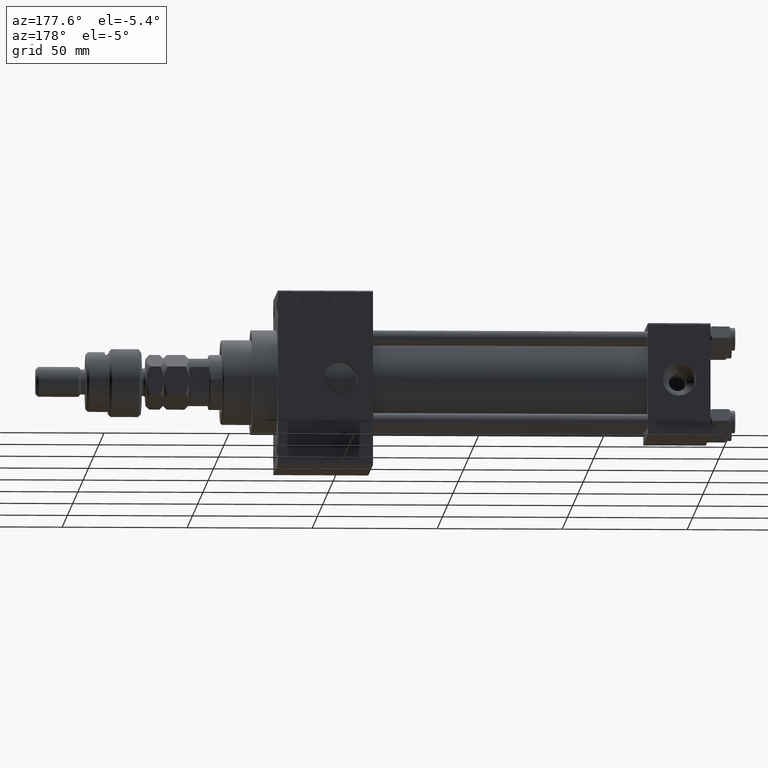
[diagram: clean part render]
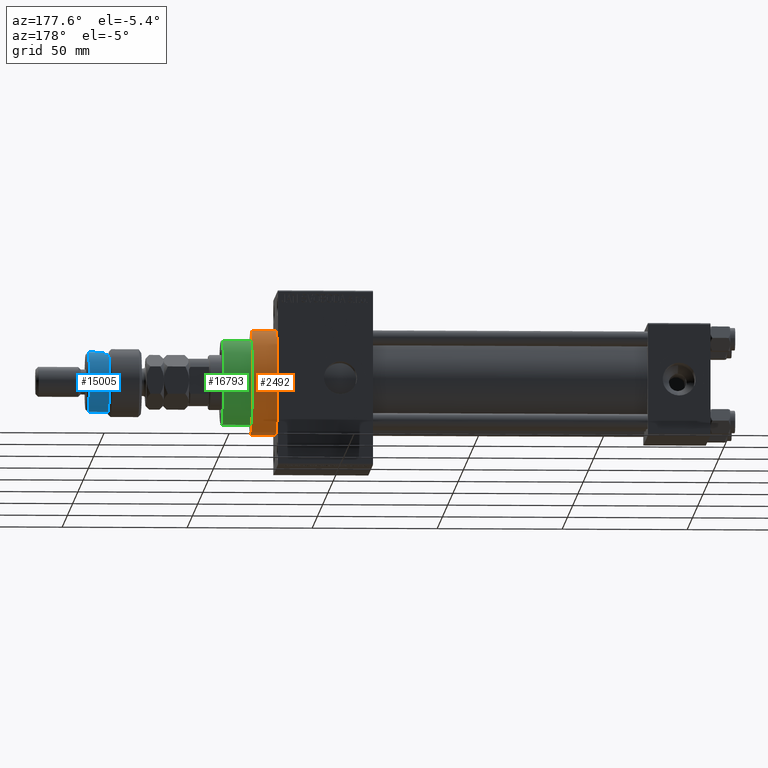
[diagram: same view with three faces highlighted in distinct colors, each labeled with its STEP entity id]
A machine part, auxiliary view with three faces highlighted in distinct colors.
Their STEP definitions:

[orange] entity #2492 — the highlighted cylindrical surface (partial cylindrical patch) has radius 21 mm, axis along (-1, -0, -0).
#2492 = ADVANCED_FACE ( 'NONE', ( #34405 ), #26004, .T. ) ;
#2597 = CARTESIAN_POINT ( 'NONE',  ( 173.0000000000000284, 0.000000000000000000, 0.000000000000000000 ) ) ;
#4593 = VERTEX_POINT ( 'NONE', #25946 ) ;
#4795 = DIRECTION ( 'NONE',  ( 1.000000000000000000, 0.000000000000000000, 0.000000000000000000 ) ) ;
#5853 = CARTESIAN_POINT ( 'NONE',  ( 173.0000000000000284, 0.000000000000000000, 21.00000000000000000 ) ) ;
#6062 = DIRECTION ( 'NONE',  ( -1.000000000000000000, -0.000000000000000000, -0.000000000000000000 ) ) ;
#6863 = EDGE_LOOP ( 'NONE', ( #31328, #44008, #29442, #35815 ) ) ;
#7508 = CIRCLE ( 'NONE', #42706, 21.00000000000000000 ) ;
#8141 = EDGE_CURVE ( 'NONE', #8202, #4593, #28521, .T. ) ;
#8202 = VERTEX_POINT ( 'NONE', #28447 ) ;
#12724 = CARTESIAN_POINT ( 'NONE',  ( 183.0000000000000284, 2.571758278209441661E-15, -21.00000000000000000 ) ) ;
#12836 = VECTOR ( 'NONE', #44775, 1000.000000000000000 ) ;
#14840 = LINE ( 'NONE', #51592, #23774 ) ;
#16123 = CARTESIAN_POINT ( 'NONE',  ( 183.0000000000000284, 0.000000000000000000, 0.000000000000000000 ) ) ;
#18103 = DIRECTION ( 'NONE',  ( 1.000000000000000000, 0.000000000000000000, 0.000000000000000000 ) ) ;
#18745 = EDGE_CURVE ( 'NONE', #25567, #31981, #7508, .T. ) ;
#23774 = VECTOR ( 'NONE', #35041, 1000.000000000000000 ) ;
#25567 = VERTEX_POINT ( 'NONE', #41471 ) ;
#25946 = CARTESIAN_POINT ( 'NONE',  ( 183.0000000000000284, 0.000000000000000000, 21.00000000000000000 ) ) ;
#26004 = CYLINDRICAL_SURFACE ( 'NONE', #42614, 21.00000000000000000 ) ;
#28447 = CARTESIAN_POINT ( 'NONE',  ( 183.0000000000000284, 2.571758278209441661E-15, -21.00000000000000000 ) ) ;
#28521 = CIRCLE ( 'NONE', #33574, 21.00000000000000000 ) ;
#29442 = ORIENTED_EDGE ( 'NONE', *, *, #18745, .T. ) ;
#29526 = LINE ( 'NONE', #12724, #12836 ) ;
#30717 = EDGE_CURVE ( 'NONE', #4593, #31981, #14840, .T. ) ;
#31328 = ORIENTED_EDGE ( 'NONE', *, *, #8141, .F. ) ;
#31981 = VERTEX_POINT ( 'NONE', #5853 ) ;
#32405 = DIRECTION ( 'NONE',  ( 0.000000000000000000, 0.000000000000000000, -1.000000000000000000 ) ) ;
#33574 = AXIS2_PLACEMENT_3D ( 'NONE', #16123, #4795, #32405 ) ;
#34368 = DIRECTION ( 'NONE',  ( 0.000000000000000000, 0.000000000000000000, -1.000000000000000000 ) ) ;
#34405 = FACE_OUTER_BOUND ( 'NONE', #6863, .T. ) ;
#35041 = DIRECTION ( 'NONE',  ( -1.000000000000000000, -0.000000000000000000, -0.000000000000000000 ) ) ;
#35815 = ORIENTED_EDGE ( 'NONE', *, *, #30717, .F. ) ;
#41471 = CARTESIAN_POINT ( 'NONE',  ( 173.0000000000000284, 2.571758278209441661E-15, -21.00000000000000000 ) ) ;
#42035 = CARTESIAN_POINT ( 'NONE',  ( 183.0000000000000284, 0.000000000000000000, 0.000000000000000000 ) ) ;
#42614 = AXIS2_PLACEMENT_3D ( 'NONE', #42035, #6062, #50690 ) ;
#42706 = AXIS2_PLACEMENT_3D ( 'NONE', #2597, #18103, #34368 ) ;
#44008 = ORIENTED_EDGE ( 'NONE', *, *, #50076, .T. ) ;
#44775 = DIRECTION ( 'NONE',  ( -1.000000000000000000, -0.000000000000000000, -0.000000000000000000 ) ) ;
#50076 = EDGE_CURVE ( 'NONE', #8202, #25567, #29526, .T. ) ;
#50690 = DIRECTION ( 'NONE',  ( 0.000000000000000000, 0.000000000000000000, 1.000000000000000000 ) ) ;
#51592 = CARTESIAN_POINT ( 'NONE',  ( 183.0000000000000284, 0.000000000000000000, 21.00000000000000000 ) ) ;

[blue] entity #15005 — the highlighted cylindrical surface (edge-blend (fillet) strip) has radius 12 mm, axis along (-1, -0, 0).
#269 = CARTESIAN_POINT ( 'NONE',  ( 12.00000000000000178, 1.469576158976824144E-15, 13.00000000000000000 ) ) ;
#608 = CARTESIAN_POINT ( 'NONE',  ( -12.00000000000000178, 0.000000000000000000, 22.00000000000000000 ) ) ;
#1608 = VECTOR ( 'NONE', #32931, 1000.000000000000000 ) ;
#3301 = CIRCLE ( 'NONE', #17552, 12.00000000000000178 ) ;
#3448 = CYLINDRICAL_SURFACE ( 'NONE', #44373, 12.00000000000000178 ) ;
#4500 = CARTESIAN_POINT ( 'NONE',  ( -12.00000000000000178, 0.000000000000000000, 20.99999999999998224 ) ) ;
#5698 = VERTEX_POINT ( 'NONE', #35393 ) ;
#6130 = VERTEX_POINT ( 'NONE', #269 ) ;
#7757 = ORIENTED_EDGE ( 'NONE', *, *, #13118, .F. ) ;
#8019 = DIRECTION ( 'NONE',  ( -1.000000000000000000, 0.000000000000000000, 0.000000000000000000 ) ) ;
#8875 = DIRECTION ( 'NONE',  ( 0.000000000000000000, 0.000000000000000000, -1.000000000000000000 ) ) ;
#8925 = VERTEX_POINT ( 'NONE', #49057 ) ;
#9004 = LINE ( 'NONE', #608, #1608 ) ;
#11063 = CARTESIAN_POINT ( 'NONE',  ( 12.00000000000000178, 1.469576158976824144E-15, 22.00000000000000000 ) ) ;
#12811 = CARTESIAN_POINT ( 'NONE',  ( 0.000000000000000000, 0.000000000000000000, 20.99999999999998224 ) ) ;
#13118 = EDGE_CURVE ( 'NONE', #20595, #8925, #38667, .T. ) ;
#14325 = ORIENTED_EDGE ( 'NONE', *, *, #19033, .T. ) ;
#15005 = ADVANCED_FACE ( 'NONE', ( #38640 ), #3448, .T. ) ;
#15026 = LINE ( 'NONE', #11063, #47303 ) ;
#15095 = EDGE_LOOP ( 'NONE', ( #14325, #17089, #15589, #36396, #7757, #17616 ) ) ;
#15427 = CARTESIAN_POINT ( 'NONE',  ( 12.00000000000000178, 1.469576158976824144E-15, 20.99999999999998224 ) ) ;
#15553 = EDGE_CURVE ( 'NONE', #33711, #20595, #9004, .T. ) ;
#15589 = ORIENTED_EDGE ( 'NONE', *, *, #44296, .T. ) ;
#17089 = ORIENTED_EDGE ( 'NONE', *, *, #32768, .T. ) ;
#17552 = AXIS2_PLACEMENT_3D ( 'NONE', #12811, #8875, #40897 ) ;
#17616 = ORIENTED_EDGE ( 'NONE', *, *, #15553, .F. ) ;
#19033 = EDGE_CURVE ( 'NONE', #33711, #45809, #3301, .T. ) ;
#19308 = CARTESIAN_POINT ( 'NONE',  ( 0.000000000000000000, 0.000000000000000000, 14.50000000000000000 ) ) ;
#19472 = DIRECTION ( 'NONE',  ( -0.000000000000000000, -0.000000000000000000, -1.000000000000000000 ) ) ;
#20595 = VERTEX_POINT ( 'NONE', #29505 ) ;
#21988 = CIRCLE ( 'NONE', #47984, 12.00000000000000178 ) ;
#23145 = DIRECTION ( 'NONE',  ( -1.000000000000000000, 0.000000000000000000, 0.000000000000000000 ) ) ;
#23555 = LINE ( 'NONE', #39577, #36621 ) ;
#27090 = CARTESIAN_POINT ( 'NONE',  ( 0.000000000000000000, 0.000000000000000000, 22.00000000000000000 ) ) ;
#27349 = DIRECTION ( 'NONE',  ( -0.000000000000000000, -0.000000000000000000, -1.000000000000000000 ) ) ;
#28892 = CARTESIAN_POINT ( 'NONE',  ( 0.000000000000000000, 0.000000000000000000, 13.00000000000000000 ) ) ;
#29505 = CARTESIAN_POINT ( 'NONE',  ( -12.00000000000000178, 0.000000000000000000, 14.50000000000000000 ) ) ;
#32768 = EDGE_CURVE ( 'NONE', #45809, #6130, #15026, .T. ) ;
#32931 = DIRECTION ( 'NONE',  ( -0.000000000000000000, -0.000000000000000000, -1.000000000000000000 ) ) ;
#33595 = DIRECTION ( 'NONE',  ( 1.000000000000000000, 0.000000000000000000, 0.000000000000000000 ) ) ;
#33711 = VERTEX_POINT ( 'NONE', #4500 ) ;
#35393 = CARTESIAN_POINT ( 'NONE',  ( -10.39230484541326760, 6.000000000000000000, 13.00000000000000000 ) ) ;
#36396 = ORIENTED_EDGE ( 'NONE', *, *, #37912, .T. ) ;
#36621 = VECTOR ( 'NONE', #44304, 1000.000000000000000 ) ;
#37912 = EDGE_CURVE ( 'NONE', #5698, #8925, #23555, .T. ) ;
#38640 = FACE_OUTER_BOUND ( 'NONE', #15095, .T. ) ;
#38667 = CIRCLE ( 'NONE', #45379, 12.00000000000000178 ) ;
#39577 = CARTESIAN_POINT ( 'NONE',  ( -10.39230484541326760, 6.000000000000000000, 22.00000000000000000 ) ) ;
#40897 = DIRECTION ( 'NONE',  ( 1.000000000000000000, 0.000000000000000000, 0.000000000000000000 ) ) ;
#43999 = DIRECTION ( 'NONE',  ( 0.000000000000000000, 0.000000000000000000, -1.000000000000000000 ) ) ;
#44296 = EDGE_CURVE ( 'NONE', #6130, #5698, #21988, .T. ) ;
#44304 = DIRECTION ( 'NONE',  ( 0.000000000000000000, 0.000000000000000000, 1.000000000000000000 ) ) ;
#44373 = AXIS2_PLACEMENT_3D ( 'NONE', #27090, #19472, #23145 ) ;
#44904 = DIRECTION ( 'NONE',  ( 0.000000000000000000, 0.000000000000000000, 1.000000000000000000 ) ) ;
#45379 = AXIS2_PLACEMENT_3D ( 'NONE', #19308, #43999, #8019 ) ;
#45809 = VERTEX_POINT ( 'NONE', #15427 ) ;
#47303 = VECTOR ( 'NONE', #27349, 1000.000000000000000 ) ;
#47984 = AXIS2_PLACEMENT_3D ( 'NONE', #28892, #44904, #33595 ) ;
#49057 = CARTESIAN_POINT ( 'NONE',  ( -10.39230484541326582, 5.999999999999998224, 14.50000000000000000 ) ) ;

[green] entity #16793 — the highlighted cylindrical surface (partial cylindrical patch) has radius 17 mm, axis along (-1, 0, 0).
#479 = CARTESIAN_POINT ( 'NONE',  ( 0.000000000000000000, 0.000000000000000000, 43.25999999999999801 ) ) ;
#2992 = ORIENTED_EDGE ( 'NONE', *, *, #45944, .T. ) ;
#5159 = AXIS2_PLACEMENT_3D ( 'NONE', #41373, #5407, #37435 ) ;
#5407 = DIRECTION ( 'NONE',  ( 0.000000000000000000, 0.000000000000000000, -1.000000000000000000 ) ) ;
#6999 = CARTESIAN_POINT ( 'NONE',  ( 17.00000000000000000, 2.081899558550500280E-15, 54.76000000000001222 ) ) ;
#7138 = CARTESIAN_POINT ( 'NONE',  ( 17.00000000000000000, 2.081899558550500280E-15, 43.25999999999999801 ) ) ;
#13557 = VECTOR ( 'NONE', #32514, 1000.000000000000000 ) ;
#13802 = CYLINDRICAL_SURFACE ( 'NONE', #25035, 17.00000000000000000 ) ;
#16181 = VECTOR ( 'NONE', #48602, 1000.000000000000000 ) ;
#16793 = ADVANCED_FACE ( 'NONE', ( #17743 ), #13802, .T. ) ;
#17061 = CIRCLE ( 'NONE', #38004, 17.00000000000000000 ) ;
#17743 = FACE_OUTER_BOUND ( 'NONE', #42885, .T. ) ;
#20903 = CARTESIAN_POINT ( 'NONE',  ( -17.00000000000000000, 0.000000000000000000, 54.76000000000001222 ) ) ;
#21016 = CARTESIAN_POINT ( 'NONE',  ( 17.00000000000000000, 2.081899558550500280E-15, 55.26000000000000512 ) ) ;
#21279 = LINE ( 'NONE', #21016, #16181 ) ;
#21840 = VERTEX_POINT ( 'NONE', #6999 ) ;
#22156 = LINE ( 'NONE', #37208, #13557 ) ;
#22283 = CARTESIAN_POINT ( 'NONE',  ( -17.00000000000000000, 0.000000000000000000, 43.25999999999999801 ) ) ;
#24584 = DIRECTION ( 'NONE',  ( -1.000000000000000000, 0.000000000000000000, 0.000000000000000000 ) ) ;
#25035 = AXIS2_PLACEMENT_3D ( 'NONE', #29831, #33004, #24584 ) ;
#29762 = EDGE_CURVE ( 'NONE', #21840, #32757, #21279, .T. ) ;
#29831 = CARTESIAN_POINT ( 'NONE',  ( 0.000000000000000000, 0.000000000000000000, 55.26000000000000512 ) ) ;
#30271 = EDGE_CURVE ( 'NONE', #39564, #32757, #17061, .T. ) ;
#31555 = ORIENTED_EDGE ( 'NONE', *, *, #29762, .F. ) ;
#32163 = ORIENTED_EDGE ( 'NONE', *, *, #30271, .T. ) ;
#32514 = DIRECTION ( 'NONE',  ( -0.000000000000000000, -0.000000000000000000, -1.000000000000000000 ) ) ;
#32540 = DIRECTION ( 'NONE',  ( 0.000000000000000000, 0.000000000000000000, 1.000000000000000000 ) ) ;
#32757 = VERTEX_POINT ( 'NONE', #7138 ) ;
#33004 = DIRECTION ( 'NONE',  ( -0.000000000000000000, -0.000000000000000000, -1.000000000000000000 ) ) ;
#37208 = CARTESIAN_POINT ( 'NONE',  ( -17.00000000000000000, 0.000000000000000000, 55.26000000000000512 ) ) ;
#37435 = DIRECTION ( 'NONE',  ( 1.000000000000000000, 0.000000000000000000, 0.000000000000000000 ) ) ;
#38004 = AXIS2_PLACEMENT_3D ( 'NONE', #479, #32540, #48543 ) ;
#39564 = VERTEX_POINT ( 'NONE', #22283 ) ;
#41214 = CIRCLE ( 'NONE', #5159, 17.00000000000000000 ) ;
#41373 = CARTESIAN_POINT ( 'NONE',  ( 0.000000000000000000, 0.000000000000000000, 54.76000000000001222 ) ) ;
#42885 = EDGE_LOOP ( 'NONE', ( #31555, #2992, #49710, #32163 ) ) ;
#43540 = EDGE_CURVE ( 'NONE', #47911, #39564, #22156, .T. ) ;
#45944 = EDGE_CURVE ( 'NONE', #21840, #47911, #41214, .T. ) ;
#47911 = VERTEX_POINT ( 'NONE', #20903 ) ;
#48543 = DIRECTION ( 'NONE',  ( 1.000000000000000000, 0.000000000000000000, 0.000000000000000000 ) ) ;
#48602 = DIRECTION ( 'NONE',  ( -0.000000000000000000, -0.000000000000000000, -1.000000000000000000 ) ) ;
#49710 = ORIENTED_EDGE ( 'NONE', *, *, #43540, .T. ) ;